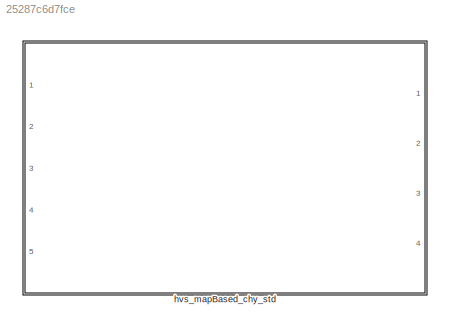
MODEL slx_25287c6d7fce
KIND library
CONFIG AbsTol = auto
CONFIG FixedStep = auto
CONFIG MaxStep = auto
CONFIG MinStep = auto
CONFIG RelTol = 1e-3
CONFIG SampleTimeConstraint = Unconstrained
CONFIG Solver = ode45
CONFIG SolverMode = Auto
CONFIG SolverName = ode45
CONFIG StartTime = 0.0
CONFIG StopTime = 10.0
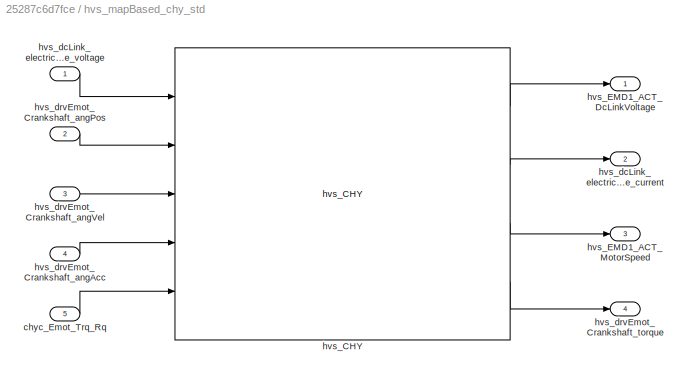
BLOCK [SubSystem] hvs_mapBased_chy_std
  Ports = [5, 4]
  RequestExecContextInheritance = off
  Variant = off
BLOCK [Inport] hvs_mapBased_chy_std/chyc_Emot_Trq_Rq
  IconDisplay = Port number
  Port = 5
BLOCK [Reference] hvs_mapBased_chy_std/hvs_CHY  REF=chy_framelib/hvs_CHY  (lib defined in slx_ee20de8a91db)
  Ports = [5, 4]
  SourceBlock = chy_framelib/hvs_CHY
  SourceType = SubSystem
BLOCK [Outport] hvs_mapBased_chy_std/hvs_EMD1_ACT_DcLinkVoltage
  IconDisplay = Port number
BLOCK [Outport] hvs_mapBased_chy_std/hvs_EMD1_ACT_MotorSpeed
  IconDisplay = Port number
  Port = 3
BLOCK [Outport] hvs_mapBased_chy_std/hvs_dcLink_electricalEnergyStorage_current
  IconDisplay = Port number
  Port = 2
BLOCK [Inport] hvs_mapBased_chy_std/hvs_dcLink_electricalEnergyStorage_voltage
  IconDisplay = Port number
BLOCK [Inport] hvs_mapBased_chy_std/hvs_drvEmot_Crankshaft_angAcc
  IconDisplay = Port number
  Port = 4
BLOCK [Inport] hvs_mapBased_chy_std/hvs_drvEmot_Crankshaft_angPos
  IconDisplay = Port number
  Port = 2
BLOCK [Inport] hvs_mapBased_chy_std/hvs_drvEmot_Crankshaft_angVel
  IconDisplay = Port number
  Port = 3
BLOCK [Outport] hvs_mapBased_chy_std/hvs_drvEmot_Crankshaft_torque
  IconDisplay = Port number
  Port = 4
LINE hvs_mapBased_chy_std/chyc_Emot_Trq_Rq:1 -> hvs_mapBased_chy_std/hvs_CHY:5
LINE hvs_mapBased_chy_std/hvs_CHY:1 -> hvs_mapBased_chy_std/hvs_EMD1_ACT_DcLinkVoltage:1
LINE hvs_mapBased_chy_std/hvs_CHY:2 -> hvs_mapBased_chy_std/hvs_dcLink_electricalEnergyStorage_current:1
LINE hvs_mapBased_chy_std/hvs_CHY:3 -> hvs_mapBased_chy_std/hvs_EMD1_ACT_MotorSpeed:1
LINE hvs_mapBased_chy_std/hvs_CHY:4 -> hvs_mapBased_chy_std/hvs_drvEmot_Crankshaft_torque:1
LINE hvs_mapBased_chy_std/hvs_dcLink_electricalEnergyStorage_voltage:1 -> hvs_mapBased_chy_std/hvs_CHY:1
LINE hvs_mapBased_chy_std/hvs_drvEmot_Crankshaft_angAcc:1 -> hvs_mapBased_chy_std/hvs_CHY:4
LINE hvs_mapBased_chy_std/hvs_drvEmot_Crankshaft_angPos:1 -> hvs_mapBased_chy_std/hvs_CHY:2
LINE hvs_mapBased_chy_std/hvs_drvEmot_Crankshaft_angVel:1 -> hvs_mapBased_chy_std/hvs_CHY:3
